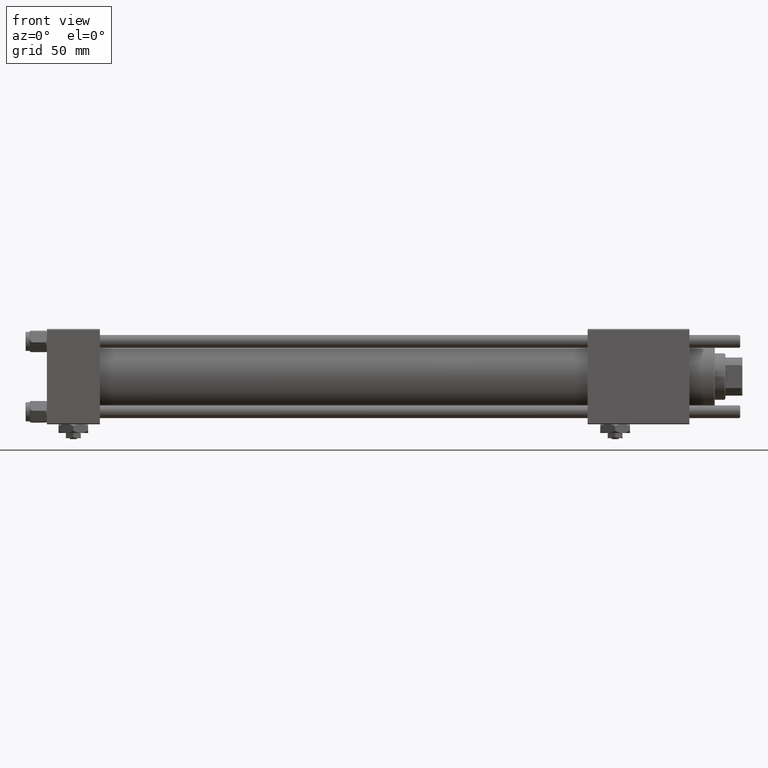
[diagram: clean part render]
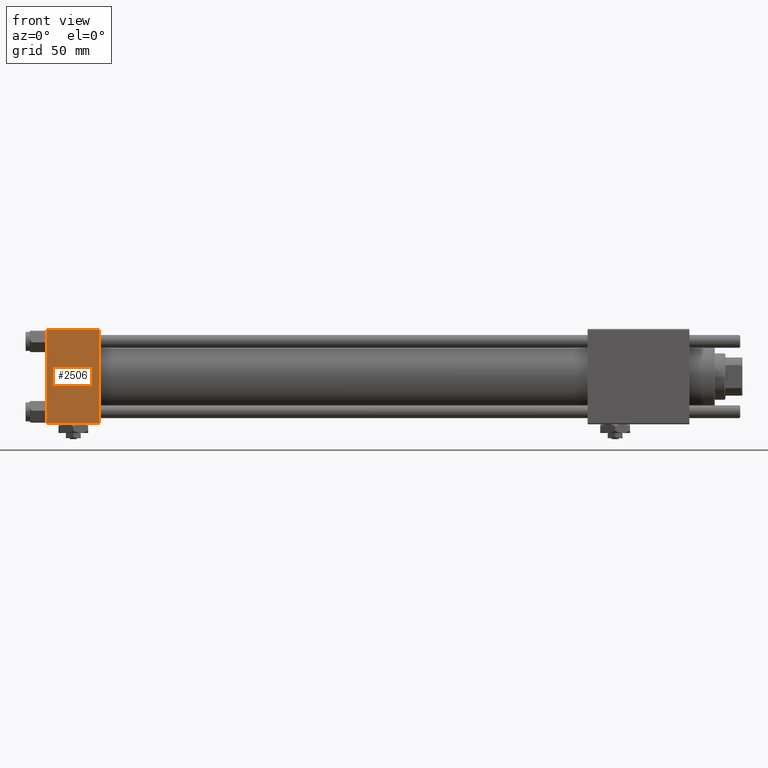
[diagram: same view with one face highlighted and labeled with its STEP entity id]
A machine part, front view. The second image highlights one B-rep face of the part: STEP entity #2506.
In plain terms, the highlighted planar face has unit normal (0, 1, 0).
Its self-contained STEP definition (entity closure, byte-faithful):
#622 = DIRECTION ( 'NONE',  ( -1.000000000000000000, 0.000000000000000000, 0.000000000000000000 ) ) ;
#896 = ORIENTED_EDGE ( 'NONE', *, *, #2274, .T. ) ;
#2274 = EDGE_CURVE ( 'NONE', #6929, #28743, #11025, .T. ) ;
#2425 = DIRECTION ( 'NONE',  ( 0.000000000000000000, -0.000000000000000000, 1.000000000000000000 ) ) ;
#2506 = ADVANCED_FACE ( 'NONE', ( #52801 ), #58249, .F. ) ;
#3580 = CARTESIAN_POINT ( 'NONE',  ( 25.00000000000000000, -22.50000000000000000, -21.99999999999998579 ) ) ;
#5158 = VECTOR ( 'NONE', #36055, 1000.000000000000000 ) ;
#6929 = VERTEX_POINT ( 'NONE', #15594 ) ;
#7660 = DIRECTION ( 'NONE',  ( 0.000000000000000000, 0.000000000000000000, -1.000000000000000000 ) ) ;
#8168 = CARTESIAN_POINT ( 'NONE',  ( 25.00000000000000000, -22.50000000000000000, 22.00000000000000000 ) ) ;
#9454 = LINE ( 'NONE', #27984, #13427 ) ;
#11025 = LINE ( 'NONE', #34687, #41416 ) ;
#13427 = VECTOR ( 'NONE', #622, 1000.000000000000000 ) ;
#13481 = EDGE_CURVE ( 'NONE', #52906, #51415, #38276, .T. ) ;
#14412 = CARTESIAN_POINT ( 'NONE',  ( 0.000000000000000000, -22.50000000000000000, -21.99999999999997158 ) ) ;
#15594 = CARTESIAN_POINT ( 'NONE',  ( 0.000000000000000000, -22.50000000000000000, 22.00000000000000000 ) ) ;
#16400 = CARTESIAN_POINT ( 'NONE',  ( 25.00000000000000000, -22.50000000000000000, 22.50000000000000000 ) ) ;
#17592 = EDGE_CURVE ( 'NONE', #28743, #51415, #54851, .T. ) ;
#25303 = ORIENTED_EDGE ( 'NONE', *, *, #17592, .T. ) ;
#27984 = CARTESIAN_POINT ( 'NONE',  ( 25.00000000000000000, -22.50000000000000000, 22.00000000000000000 ) ) ;
#28743 = VERTEX_POINT ( 'NONE', #14412 ) ;
#34687 = CARTESIAN_POINT ( 'NONE',  ( 0.000000000000000000, -22.50000000000000000, 22.50000000000000000 ) ) ;
#34927 = DIRECTION ( 'NONE',  ( 0.000000000000000000, 0.000000000000000000, -1.000000000000000000 ) ) ;
#36055 = DIRECTION ( 'NONE',  ( 1.000000000000000000, 0.000000000000000000, 0.000000000000000000 ) ) ;
#38276 = LINE ( 'NONE', #43421, #39900 ) ;
#39476 = EDGE_LOOP ( 'NONE', ( #896, #25303, #40454, #44251 ) ) ;
#39900 = VECTOR ( 'NONE', #34927, 1000.000000000000000 ) ;
#40454 = ORIENTED_EDGE ( 'NONE', *, *, #13481, .F. ) ;
#40460 = AXIS2_PLACEMENT_3D ( 'NONE', #16400, #57638, #2425 ) ;
#41416 = VECTOR ( 'NONE', #7660, 1000.000000000000000 ) ;
#43421 = CARTESIAN_POINT ( 'NONE',  ( 25.00000000000000000, -22.50000000000000000, 22.50000000000000000 ) ) ;
#44251 = ORIENTED_EDGE ( 'NONE', *, *, #52847, .T. ) ;
#51415 = VERTEX_POINT ( 'NONE', #58036 ) ;
#52801 = FACE_OUTER_BOUND ( 'NONE', #39476, .T. ) ;
#52847 = EDGE_CURVE ( 'NONE', #52906, #6929, #9454, .T. ) ;
#52906 = VERTEX_POINT ( 'NONE', #8168 ) ;
#54851 = LINE ( 'NONE', #3580, #5158 ) ;
#57638 = DIRECTION ( 'NONE',  ( -0.000000000000000000, 1.000000000000000000, 0.000000000000000000 ) ) ;
#58036 = CARTESIAN_POINT ( 'NONE',  ( 25.00000000000000000, -22.50000000000000000, -21.99999999999997158 ) ) ;
#58249 = PLANE ( 'NONE',  #40460 ) ;